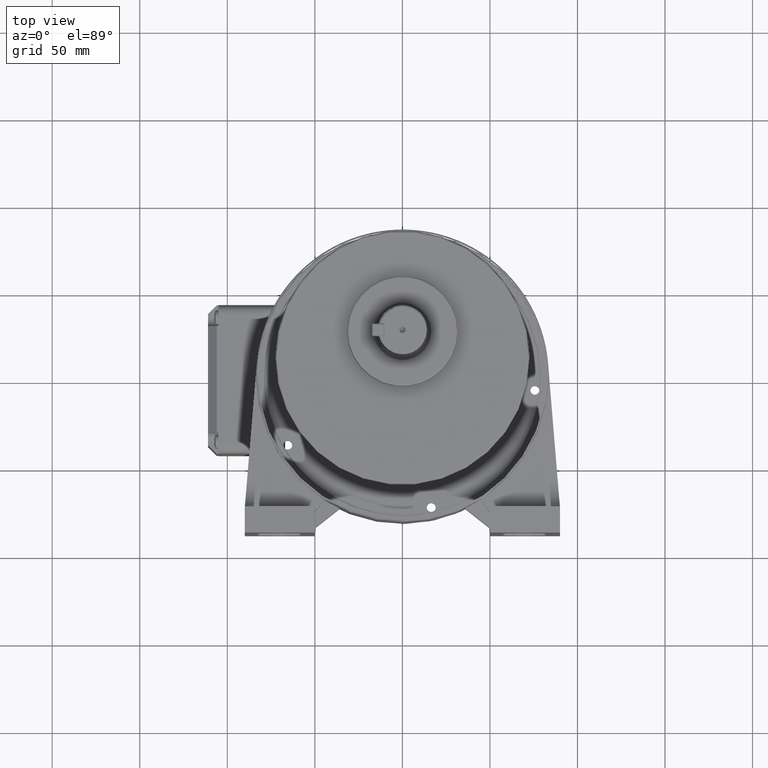
[diagram: clean part render]
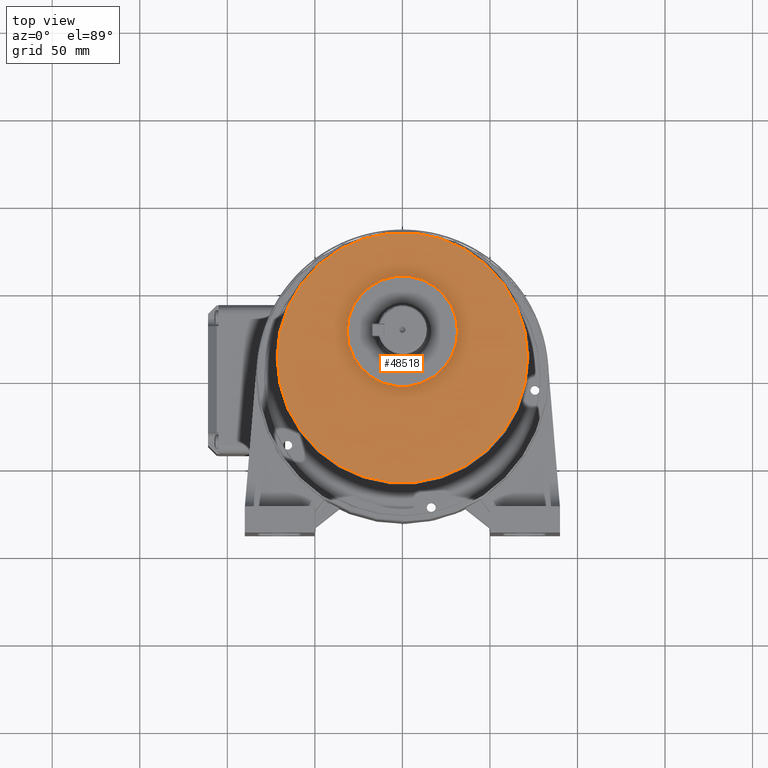
[diagram: same view with one face highlighted and labeled with its STEP entity id]
A machine part, top view. The second image highlights one B-rep face of the part: STEP entity #48518.
In plain terms, the highlighted planar face has unit normal (0, 0, -1).
Its self-contained STEP definition (entity closure, byte-faithful):
#10657 = DIRECTION ( 'NONE',  ( 1.000000000000000000, 0.0000000000000000000, -0.0000000000000000000 ) ) ;
#10667 = DIRECTION ( 'NONE',  ( 0.0000000000000000000, 0.0000000000000000000, 1.000000000000000000 ) ) ;
#10668 = AXIS2_PLACEMENT_3D ( 'NONE', #10674, #10667, #10657 ) ;
#10669 = FACE_BOUND ( 'NONE', #48509, .T. ) ;
#10673 = PLANE ( 'NONE',  #10668 ) ;
#10674 = CARTESIAN_POINT ( 'NONE',  ( 0.0000000000000000000, 10.00000000000000000, -82.00000000000000000 ) ) ;
#10677 = FACE_OUTER_BOUND ( 'NONE', #48529, .T. ) ;
#10759 = DIRECTION ( 'NONE',  ( 1.000000000000000000, 0.0000000000000000000, 0.0000000000000000000 ) ) ;
#10760 = DIRECTION ( 'NONE',  ( 0.0000000000000000000, 0.0000000000000000000, 1.000000000000000000 ) ) ;
#10761 = CARTESIAN_POINT ( 'NONE',  ( 0.0000000000000000000, 25.00000000000000000, -82.00000000000000000 ) ) ;
#10764 = DIRECTION ( 'NONE',  ( 1.000000000000000000, 0.0000000000000000000, 0.0000000000000000000 ) ) ;
#10765 = DIRECTION ( 'NONE',  ( -0.0000000000000000000, -0.0000000000000000000, -1.000000000000000000 ) ) ;
#10766 = CARTESIAN_POINT ( 'NONE',  ( 0.0000000000000000000, 10.00000000000000000, -82.00000000000000000 ) ) ;
#10767 = AXIS2_PLACEMENT_3D ( 'NONE', #10766, #10765, #10764 ) ;
#10774 = CIRCLE ( 'NONE', #10778, 31.50000000000000000 ) ;
#10778 = AXIS2_PLACEMENT_3D ( 'NONE', #10761, #10760, #10759 ) ;
#10779 = CIRCLE ( 'NONE', #10767, 71.50000000000000000 ) ;
#18811 = EDGE_CURVE ( 'NONE', #18818, #18822, #26982, .T. ) ;
#18818 = VERTEX_POINT ( 'NONE', #26954 ) ;
#18822 = VERTEX_POINT ( 'NONE', #27005 ) ;
#18843 = VERTEX_POINT ( 'NONE', #27026 ) ;
#18845 = EDGE_CURVE ( 'NONE', #18843, #18862, #27032, .T. ) ;
#18862 = VERTEX_POINT ( 'NONE', #27025 ) ;
#26945 = AXIS2_PLACEMENT_3D ( 'NONE', #26977, #26972, #26971 ) ;
#26954 = CARTESIAN_POINT ( 'NONE',  ( -71.50000000000000000, 10.00000000000000900, -82.00000000000000000 ) ) ;
#26971 = DIRECTION ( 'NONE',  ( 1.000000000000000000, 0.0000000000000000000, 0.0000000000000000000 ) ) ;
#26972 = DIRECTION ( 'NONE',  ( -0.0000000000000000000, -0.0000000000000000000, -1.000000000000000000 ) ) ;
#26977 = CARTESIAN_POINT ( 'NONE',  ( 0.0000000000000000000, 10.00000000000000000, -82.00000000000000000 ) ) ;
#26982 = CIRCLE ( 'NONE', #26945, 71.50000000000000000 ) ;
#27005 = CARTESIAN_POINT ( 'NONE',  ( 71.50000000000000000, 10.00000000000000000, -82.00000000000000000 ) ) ;
#27020 = DIRECTION ( 'NONE',  ( 1.000000000000000000, 0.0000000000000000000, 0.0000000000000000000 ) ) ;
#27021 = DIRECTION ( 'NONE',  ( 0.0000000000000000000, 0.0000000000000000000, 1.000000000000000000 ) ) ;
#27022 = CARTESIAN_POINT ( 'NONE',  ( 0.0000000000000000000, 25.00000000000000000, -82.00000000000000000 ) ) ;
#27025 = CARTESIAN_POINT ( 'NONE',  ( -31.50000000000000000, 25.00000000000000400, -82.00000000000000000 ) ) ;
#27026 = CARTESIAN_POINT ( 'NONE',  ( 31.50000000000000000, 25.00000000000000000, -82.00000000000000000 ) ) ;
#27032 = CIRCLE ( 'NONE', #27041, 31.50000000000000000 ) ;
#27041 = AXIS2_PLACEMENT_3D ( 'NONE', #27022, #27021, #27020 ) ;
#48509 = EDGE_LOOP ( 'NONE', ( #48574, #48571 ) ) ;
#48517 = ORIENTED_EDGE ( 'NONE', *, *, #18811, .T. ) ;
#48518 = ADVANCED_FACE ( 'NONE', ( #10677, #10669 ), #10673, .F. ) ;
#48520 = ORIENTED_EDGE ( 'NONE', *, *, #48572, .T. ) ;
#48529 = EDGE_LOOP ( 'NONE', ( #48520, #48517 ) ) ;
#48571 = ORIENTED_EDGE ( 'NONE', *, *, #48573, .T. ) ;
#48572 = EDGE_CURVE ( 'NONE', #18822, #18818, #10779, .T. ) ;
#48573 = EDGE_CURVE ( 'NONE', #18862, #18843, #10774, .T. ) ;
#48574 = ORIENTED_EDGE ( 'NONE', *, *, #18845, .T. ) ;